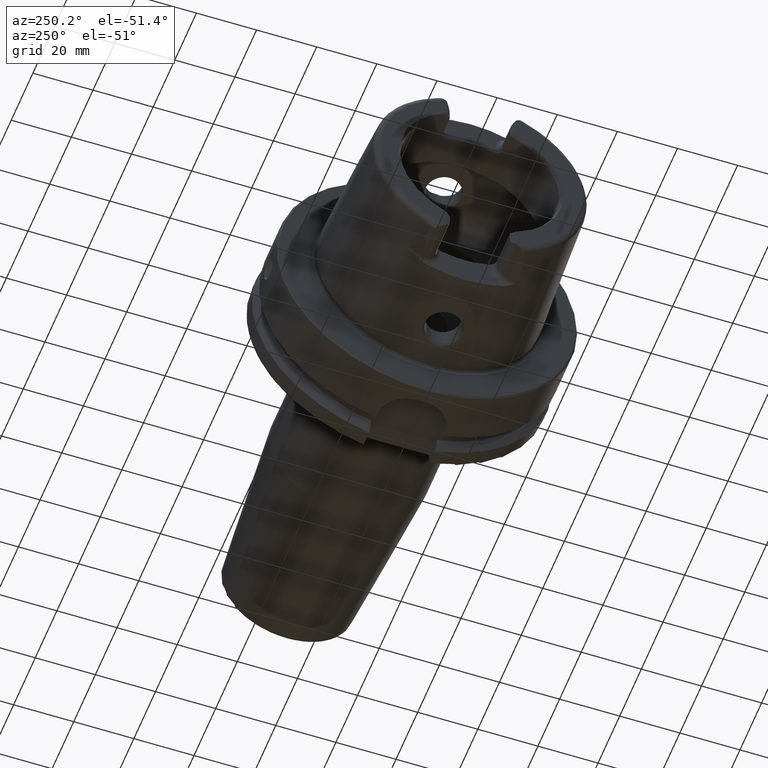
[diagram: clean part render]
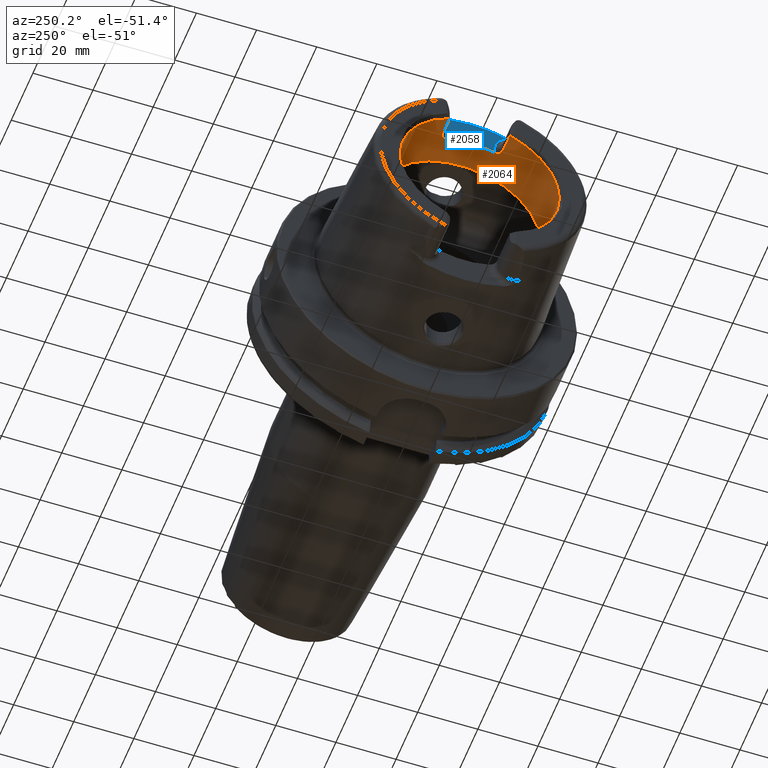
[diagram: same view with the hole feature highlighted: cylindrical wall and planar end face, labeled with their STEP entity ids]
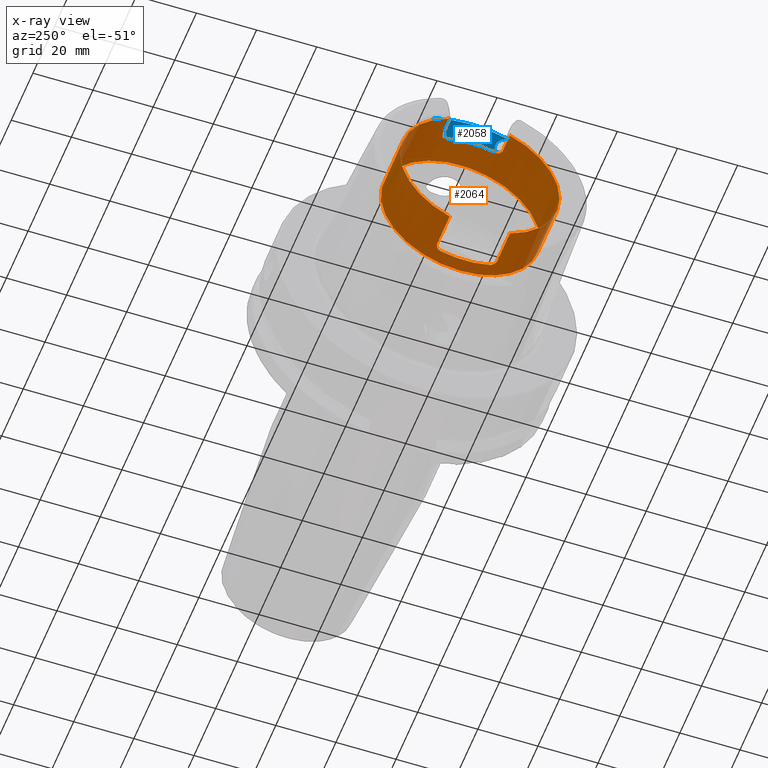
[diagram: x-ray of the same camera — body ghosted, the hole faces saturated]
A machine part, auxiliary view. The highlighted faces form one hole feature of diameter 53 mm: the cylindrical wall (entity #2064, orange) and its adjacent planar end face (entity #2058, blue) — they share a circular edge in the B-rep.
The next image is the same camera in x-ray (body ghosted, the hole faces saturated) — the bore reads through the body.
Wall:
#80=B_SPLINE_CURVE_WITH_KNOTS('',3,(#4317,#4318,#4319,#4320,#4321,#4322,
#4323,#4324,#4325,#4326),.UNSPECIFIED.,.F.,.F.,(4,2,2,2,4),(0.307245873696209,
0.387318131676521,0.467390389656833,0.542677307505841,0.617964225354849),
 .UNSPECIFIED.);
#81=B_SPLINE_CURVE_WITH_KNOTS('',3,(#4335,#4336,#4337,#4338,#4339,#4340,
#4341,#4342,#4343,#4344),.UNSPECIFIED.,.F.,.F.,(4,2,2,2,4),(0.61796422535485,
0.694491364966707,0.771018504578565,0.849854597041439,0.928690689504313),
 .UNSPECIFIED.);
#82=B_SPLINE_CURVE_WITH_KNOTS('',3,(#4357,#4358,#4359,#4360,#4361,#4362,
#4363,#4364,#4365,#4366),.UNSPECIFIED.,.F.,.F.,(4,2,2,2,4),(0.617964225354849,
0.693251143203857,0.768538061052865,0.848610319033177,0.928682577013489),
 .UNSPECIFIED.);
#83=B_SPLINE_CURVE_WITH_KNOTS('',3,(#4386,#4387,#4388,#4389,#4390,#4391,
#4392,#4393,#4394,#4395),.UNSPECIFIED.,.F.,.F.,(4,2,2,2,4),(0.307245873696209,
0.387318131676521,0.467390389656833,0.542677307505841,0.617964225354849),
 .UNSPECIFIED.);
#202=CYLINDRICAL_SURFACE('',#2314,26.5);
#302=FACE_OUTER_BOUND('',#430,.T.);
#430=EDGE_LOOP('',(#1832,#1833,#1834,#1835,#1836,#1837,#1838,#1839,#1840,
#1841,#1842,#1843,#1844,#1845,#1846,#1847,#1848));
#482=LINE('',#3101,#589);
#490=LINE('',#3176,#597);
#494=LINE('',#3240,#601);
#553=LINE('',#4382,#660);
#557=LINE('',#4430,#664);
#589=VECTOR('',#2486,10.);
#597=VECTOR('',#2532,10.);
#601=VECTOR('',#2554,10.);
#660=VECTOR('',#2833,10.);
#664=VECTOR('',#2877,26.5);
#700=CIRCLE('',#2168,26.5);
#701=CIRCLE('',#2169,26.5);
#764=CIRCLE('',#2293,26.5);
#769=CIRCLE('',#2305,26.5);
#770=CIRCLE('',#2308,26.5);
#773=CIRCLE('',#2315,26.5);
#774=CIRCLE('',#2316,26.5);
#838=VERTEX_POINT('',#3091);
#841=VERTEX_POINT('',#3099);
#850=VERTEX_POINT('',#3148);
#852=VERTEX_POINT('',#3154);
#853=VERTEX_POINT('',#3156);
#859=VERTEX_POINT('',#3174);
#865=VERTEX_POINT('',#3207);
#870=VERTEX_POINT('',#3239);
#977=VERTEX_POINT('',#4315);
#979=VERTEX_POINT('',#4334);
#983=VERTEX_POINT('',#4355);
#984=VERTEX_POINT('',#4356);
#986=VERTEX_POINT('',#4376);
#988=VERTEX_POINT('',#4427);
#989=VERTEX_POINT('',#4428);
#1058=EDGE_CURVE('',#838,#841,#482,.T.);
#1071=EDGE_CURVE('',#852,#853,#700,.T.);
#1072=EDGE_CURVE('',#853,#850,#701,.T.);
#1081=EDGE_CURVE('',#852,#859,#490,.T.);
#1094=EDGE_CURVE('',#870,#865,#494,.T.);
#1252=EDGE_CURVE('',#977,#859,#80,.T.);
#1256=EDGE_CURVE('',#870,#979,#81,.T.);
#1262=EDGE_CURVE('',#983,#984,#82,.T.);
#1268=EDGE_CURVE('',#986,#984,#764,.T.);
#1271=EDGE_CURVE('',#983,#850,#553,.T.);
#1274=EDGE_CURVE('',#986,#841,#83,.T.);
#1278=EDGE_CURVE('',#977,#979,#769,.T.);
#1280=EDGE_CURVE('',#838,#865,#770,.T.);
#1284=EDGE_CURVE('',#988,#989,#773,.T.);
#1285=EDGE_CURVE('',#988,#853,#557,.T.);
#1286=EDGE_CURVE('',#989,#988,#774,.T.);
#1832=ORIENTED_EDGE('',*,*,#1284,.F.);
#1833=ORIENTED_EDGE('',*,*,#1285,.T.);
#1834=ORIENTED_EDGE('',*,*,#1071,.F.);
#1835=ORIENTED_EDGE('',*,*,#1081,.T.);
#1836=ORIENTED_EDGE('',*,*,#1252,.F.);
#1837=ORIENTED_EDGE('',*,*,#1278,.T.);
#1838=ORIENTED_EDGE('',*,*,#1256,.F.);
#1839=ORIENTED_EDGE('',*,*,#1094,.T.);
#1840=ORIENTED_EDGE('',*,*,#1280,.F.);
#1841=ORIENTED_EDGE('',*,*,#1058,.T.);
#1842=ORIENTED_EDGE('',*,*,#1274,.F.);
#1843=ORIENTED_EDGE('',*,*,#1268,.T.);
#1844=ORIENTED_EDGE('',*,*,#1262,.F.);
#1845=ORIENTED_EDGE('',*,*,#1271,.T.);
#1846=ORIENTED_EDGE('',*,*,#1072,.F.);
#1847=ORIENTED_EDGE('',*,*,#1285,.F.);
#1848=ORIENTED_EDGE('',*,*,#1286,.F.);
#2064=ADVANCED_FACE('',(#302),#202,.F.);
#2168=AXIS2_PLACEMENT_3D('',#3157,#2510,#2511);
#2169=AXIS2_PLACEMENT_3D('',#3158,#2512,#2513);
#2293=AXIS2_PLACEMENT_3D('',#4377,#2826,#2827);
#2305=AXIS2_PLACEMENT_3D('',#4404,#2854,#2855);
#2308=AXIS2_PLACEMENT_3D('',#4419,#2860,#2861);
#2314=AXIS2_PLACEMENT_3D('',#4426,#2873,#2874);
#2315=AXIS2_PLACEMENT_3D('',#4429,#2875,#2876);
#2316=AXIS2_PLACEMENT_3D('',#4431,#2878,#2879);
#2486=DIRECTION('',(1.,0.,0.));
#2510=DIRECTION('center_axis',(1.,0.,0.));
#2511=DIRECTION('ref_axis',(0.,-1.,0.));
#2512=DIRECTION('center_axis',(1.,0.,0.));
#2513=DIRECTION('ref_axis',(0.,-1.,0.));
#2532=DIRECTION('',(1.,0.,0.));
#2554=DIRECTION('',(-1.,0.,0.));
#2826=DIRECTION('center_axis',(-1.,0.,0.));
#2827=DIRECTION('ref_axis',(0.,1.,0.));
#2833=DIRECTION('',(-1.,0.,0.));
#2854=DIRECTION('center_axis',(-1.,0.,0.));
#2855=DIRECTION('ref_axis',(0.,1.,0.));
#2860=DIRECTION('center_axis',(1.,0.,0.));
#2861=DIRECTION('ref_axis',(0.,-1.,0.));
#2873=DIRECTION('center_axis',(-1.,0.,0.));
#2874=DIRECTION('ref_axis',(0.,1.,0.));
#2875=DIRECTION('center_axis',(-1.,0.,0.));
#2876=DIRECTION('ref_axis',(0.,0.,1.));
#2877=DIRECTION('',(-1.,0.,0.));
#2878=DIRECTION('center_axis',(-1.,0.,0.));
#2879=DIRECTION('ref_axis',(0.,0.,1.));
#3091=CARTESIAN_POINT('',(-48.5,10.01,-24.5367051577835));
#3099=CARTESIAN_POINT('',(-37.,10.01,-24.5367051577835));
#3101=CARTESIAN_POINT('',(-40.2903629710818,10.01,-24.5367051577835));
#3148=CARTESIAN_POINT('',(-48.5,-10.01,-24.5367051577835));
#3154=CARTESIAN_POINT('',(-48.5,-10.01,24.5367051577835));
#3156=CARTESIAN_POINT('',(-48.5,-26.5,3.24531401774049E-15));
#3157=CARTESIAN_POINT('Origin',(-48.5,0.,0.));
#3158=CARTESIAN_POINT('Origin',(-48.5,0.,0.));
#3174=CARTESIAN_POINT('',(-42.,-10.01,24.5367051577835));
#3176=CARTESIAN_POINT('',(-40.2903629710818,-10.01,24.5367051577835));
#3207=CARTESIAN_POINT('',(-48.5,10.01,24.5367051577835));
#3239=CARTESIAN_POINT('',(-42.,10.01,24.5367051577835));
#3240=CARTESIAN_POINT('',(-40.2903629710818,10.01,24.5367051577835));
#4315=CARTESIAN_POINT('',(-40.,-8.01,25.2604414054862));
#4317=CARTESIAN_POINT('Ctrl Pts',(-40.,-8.01,25.2604414054862));
#4318=CARTESIAN_POINT('Ctrl Pts',(-40.,-8.26442271458071,25.1797648285777));
#4319=CARTESIAN_POINT('Ctrl Pts',(-40.0513332778729,-8.53503831367686,25.0892968127514));
#4320=CARTESIAN_POINT('Ctrl Pts',(-40.2604388709541,-9.03317850506395,24.9142806373643));
#4321=CARTESIAN_POINT('Ctrl Pts',(-40.4182028025644,-9.2607746884821,24.8299262887475));
#4322=CARTESIAN_POINT('Ctrl Pts',(-40.7762398849713,-9.61038047170956,24.6966285655713));
#4323=CARTESIAN_POINT('Ctrl Pts',(-40.996584045901,-9.75993653512726,24.6374761492843));
#4324=CARTESIAN_POINT('Ctrl Pts',(-41.4829332858843,-9.95981108540838,24.557356442995));
#4325=CARTESIAN_POINT('Ctrl Pts',(-41.74904360717,-10.01,24.5367051577835));
#4326=CARTESIAN_POINT('Ctrl Pts',(-42.,-10.01,24.5367051577835));
#4334=CARTESIAN_POINT('',(-40.,8.01,25.2604414054862));
#4335=CARTESIAN_POINT('Ctrl Pts',(-42.,10.01,24.5367051577835));
#4336=CARTESIAN_POINT('Ctrl Pts',(-41.7449095346271,10.01,24.5367051577835));
#4337=CARTESIAN_POINT('Ctrl Pts',(-41.4747619014646,9.95816285425487,24.5580391842641));
#4338=CARTESIAN_POINT('Ctrl Pts',(-40.9823460284033,9.75229566196282,24.640515927451));
#4339=CARTESIAN_POINT('Ctrl Pts',(-40.7599680829949,9.59839520774108,24.7013267120605));
#4340=CARTESIAN_POINT('Ctrl Pts',(-40.4063494382929,9.24477656303909,24.8358806096526));
#4341=CARTESIAN_POINT('Ctrl Pts',(-40.2529543645221,9.01930384320105,24.9192727261742));
#4342=CARTESIAN_POINT('Ctrl Pts',(-40.049776768453,8.52719637786957,25.0919293188873));
#4343=CARTESIAN_POINT('Ctrl Pts',(-40.,8.26049490494288,25.1810103236462));
#4344=CARTESIAN_POINT('Ctrl Pts',(-40.,8.01,25.2604414054862));
#4355=CARTESIAN_POINT('',(-37.,-10.01,-24.5367051577835));
#4356=CARTESIAN_POINT('',(-35.,-8.01,-25.2604414054862));
#4357=CARTESIAN_POINT('Ctrl Pts',(-37.,-10.01,-24.5367051577835));
#4358=CARTESIAN_POINT('Ctrl Pts',(-36.74904360717,-10.01,-24.5367051577835));
#4359=CARTESIAN_POINT('Ctrl Pts',(-36.4829332858843,-9.95981108540838,-24.557356442995));
#4360=CARTESIAN_POINT('Ctrl Pts',(-35.9965840459011,-9.75993653512726,-24.6374761492843));
#4361=CARTESIAN_POINT('Ctrl Pts',(-35.7762398849713,-9.61038047170956,-24.6966285655713));
#4362=CARTESIAN_POINT('Ctrl Pts',(-35.4182028025644,-9.2607746884821,-24.8299262887475));
#4363=CARTESIAN_POINT('Ctrl Pts',(-35.2604388709541,-9.03317850506395,-24.9142806373643));
#4364=CARTESIAN_POINT('Ctrl Pts',(-35.0513332778729,-8.53503831367686,-25.0892968127514));
#4365=CARTESIAN_POINT('Ctrl Pts',(-35.,-8.26442271458071,-25.1797648285777));
#4366=CARTESIAN_POINT('Ctrl Pts',(-35.,-8.01,-25.2604414054862));
#4376=CARTESIAN_POINT('',(-35.,8.01,-25.2604414054862));
#4377=CARTESIAN_POINT('Origin',(-35.,0.,0.));
#4382=CARTESIAN_POINT('',(-40.2903629710818,-10.01,-24.5367051577835));
#4386=CARTESIAN_POINT('Ctrl Pts',(-35.,8.01,-25.2604414054862));
#4387=CARTESIAN_POINT('Ctrl Pts',(-35.,8.26442271458071,-25.1797648285777));
#4388=CARTESIAN_POINT('Ctrl Pts',(-35.0513332778729,8.53503831367686,-25.0892968127514));
#4389=CARTESIAN_POINT('Ctrl Pts',(-35.2604388709541,9.03317850506395,-24.9142806373643));
#4390=CARTESIAN_POINT('Ctrl Pts',(-35.4182028025644,9.2607746884821,-24.8299262887475));
#4391=CARTESIAN_POINT('Ctrl Pts',(-35.7762398849713,9.61038047170956,-24.6966285655713));
#4392=CARTESIAN_POINT('Ctrl Pts',(-35.9965840459011,9.75993653512726,-24.6374761492843));
#4393=CARTESIAN_POINT('Ctrl Pts',(-36.4829332858843,9.95981108540838,-24.557356442995));
#4394=CARTESIAN_POINT('Ctrl Pts',(-36.74904360717,10.01,-24.5367051577835));
#4395=CARTESIAN_POINT('Ctrl Pts',(-37.,10.01,-24.5367051577835));
#4404=CARTESIAN_POINT('Origin',(-40.,0.,0.));
#4419=CARTESIAN_POINT('Origin',(-48.5,0.,0.));
#4426=CARTESIAN_POINT('Origin',(-40.2903629710818,0.,0.));
#4427=CARTESIAN_POINT('',(-30.5807259421637,-26.5,3.24531401774049E-15));
#4428=CARTESIAN_POINT('',(-30.5807259421637,-3.24531401774049E-15,-26.5));
#4429=CARTESIAN_POINT('Origin',(-30.5807259421637,0.,0.));
#4430=CARTESIAN_POINT('',(-40.2903629710818,-26.5,3.24531401774049E-15));
#4431=CARTESIAN_POINT('Origin',(-30.5807259421637,0.,0.));
End face:
#127=PLANE('',#2304);
#296=FACE_OUTER_BOUND('',#424,.T.);
#424=EDGE_LOOP('',(#1802,#1803,#1804,#1805,#1806,#1807));
#547=LINE('',#4316,#654);
#548=LINE('',#4345,#655);
#654=VECTOR('',#2787,10.);
#655=VECTOR('',#2800,10.);
#712=CIRCLE('',#2191,36.003493987976);
#755=CIRCLE('',#2277,6.88);
#757=CIRCLE('',#2280,6.88);
#769=CIRCLE('',#2305,26.5);
#884=VERTEX_POINT('',#3494);
#885=VERTEX_POINT('',#3511);
#976=VERTEX_POINT('',#4313);
#977=VERTEX_POINT('',#4315);
#978=VERTEX_POINT('',#4330);
#979=VERTEX_POINT('',#4334);
#1113=EDGE_CURVE('',#884,#885,#712,.T.);
#1251=EDGE_CURVE('',#976,#977,#547,.T.);
#1253=EDGE_CURVE('',#885,#976,#755,.T.);
#1255=EDGE_CURVE('',#978,#884,#757,.T.);
#1257=EDGE_CURVE('',#979,#978,#548,.T.);
#1278=EDGE_CURVE('',#977,#979,#769,.T.);
#1802=ORIENTED_EDGE('',*,*,#1253,.F.);
#1803=ORIENTED_EDGE('',*,*,#1113,.F.);
#1804=ORIENTED_EDGE('',*,*,#1255,.F.);
#1805=ORIENTED_EDGE('',*,*,#1257,.F.);
#1806=ORIENTED_EDGE('',*,*,#1278,.F.);
#1807=ORIENTED_EDGE('',*,*,#1251,.F.);
#2058=ADVANCED_FACE('',(#296),#127,.T.);
#2191=AXIS2_PLACEMENT_3D('',#3512,#2568,#2569);
#2277=AXIS2_PLACEMENT_3D('',#4328,#2790,#2791);
#2280=AXIS2_PLACEMENT_3D('',#4332,#2796,#2797);
#2304=AXIS2_PLACEMENT_3D('',#4403,#2852,#2853);
#2305=AXIS2_PLACEMENT_3D('',#4404,#2854,#2855);
#2568=DIRECTION('center_axis',(1.,0.,0.));
#2569=DIRECTION('ref_axis',(0.,1.,0.));
#2787=DIRECTION('',(0.,0.,-1.));
#2790=DIRECTION('center_axis',(-1.,0.,0.));
#2791=DIRECTION('ref_axis',(0.,0.564947834751706,0.82512662301574));
#2796=DIRECTION('center_axis',(-1.,0.,0.));
#2797=DIRECTION('ref_axis',(0.,-0.564947834751705,0.825126623015741));
#2800=DIRECTION('',(0.,0.,1.));
#2852=DIRECTION('center_axis',(-1.,0.,0.));
#2853=DIRECTION('ref_axis',(0.,0.,1.));
#2854=DIRECTION('center_axis',(-1.,0.,0.));
#2855=DIRECTION('ref_axis',(0.,1.,0.));
#3494=CARTESIAN_POINT('',(-40.,12.4227760464511,33.7923987701664));
#3511=CARTESIAN_POINT('',(-40.,-12.4227760464511,33.7923987701664));
#3512=CARTESIAN_POINT('Origin',(-40.,0.,0.));
#4313=CARTESIAN_POINT('',(-40.,-8.01,27.37));
#4315=CARTESIAN_POINT('',(-40.,-8.01,25.2604414054862));
#4316=CARTESIAN_POINT('',(-40.,-8.01,23.5));
#4328=CARTESIAN_POINT('Origin',(-40.,-14.89,27.37));
#4330=CARTESIAN_POINT('',(-40.,8.01,27.37));
#4332=CARTESIAN_POINT('Origin',(-40.,14.89,27.37));
#4334=CARTESIAN_POINT('',(-40.,8.01,25.2604414054862));
#4345=CARTESIAN_POINT('',(-40.,8.01,28.185));
#4403=CARTESIAN_POINT('Origin',(-40.,0.,29.));
#4404=CARTESIAN_POINT('Origin',(-40.,0.,0.));